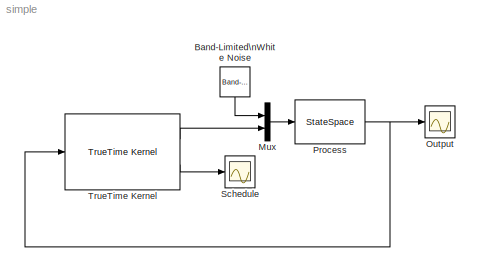
MODEL simple
KIND model
CONFIG AbsTol = auto
CONFIG FixedStep = auto
CONFIG MaxStep = auto
CONFIG MinStep = auto
CONFIG RelTol = 1e-3
CONFIG Solver = ode45
CONFIG SolverMode = Auto
CONFIG StartTime = 0.0
CONFIG StopTime = 10.0
BLOCK [Reference] Band-Limited\nWhite Noise  REF=simulink3/Sources/Band-Limited\nWhite Noise
  Cov = [0.1]
  Ports = [0, 1]
  SourceBlock = simulink3/Sources/Band-Limited\nWhite Noise
  SourceType = Continuous White Noise.
  Ts = 0.1
  VectorParams1D = on
  seed = [23341]
BLOCK [Mux] Mux
  DisplayOption = bar
  Inputs = 2
  Ports = [2, 1]
BLOCK [Scope] Output
  DataFormat = StructureWithTime
  Decimation = 1
  Floating = off
  Grid = on
  LimitDataPoints = on
  MaxDataPoints = 5000
  NumInputPorts = 1
  Ports = [1]
  SampleInput = off
  SampleTime = 0
  SaveName = ScopeData1
  SaveToWorkspace = off
  TickLabels = OneTimeTick
  TimeRange = auto
  YMax = 5
  YMin = -5
  ZoomMode = on
BLOCK [StateSpace] Process
  A = 1
  AbsoluteTolerance = auto
  B = 1
  C = 1
  D = 1
  Realization = auto
  X0 = 0
BLOCK [Scope] Schedule
  DataFormat = StructureWithTime
  Decimation = 1
  Floating = off
  Grid = on
  LimitDataPoints = on
  MaxDataPoints = 5000
  NumInputPorts = 1
  Ports = [1]
  SampleInput = off
  SampleTime = 0
  SaveName = ScopeData
  SaveToWorkspace = off
  TickLabels = OneTimeTick
  TimeRange = auto
  YMax = 5
  YMin = -5
  ZoomMode = on
BLOCK [Reference] TrueTime Kernel  REF=truetime/TrueTime Kernel  (lib defined in slx_0362a698a4ec)
  Ports = [1, 2]
  SourceBlock = truetime/TrueTime Kernel
  args = []
  battery = off
  clockoffsetdrift = [0 0]
  monitorsoutput = off
  ninputsoutputs = [1 1]
  ntriggers = 0
  nwnodenbr = []
  poweroutput = off
  schedoutput = on
  sfun = node_init
LINE Band-Limited\nWhite Noise:1 -> Mux:1
LINE Mux:1 -> Process:1
NET Process:1 -> Output:1, TrueTime Kernel:1
LINE TrueTime Kernel:1 -> Mux:2
LINE TrueTime Kernel:2 -> Schedule:1
note: NET lines group one-source signal fan-out (src -> all destinations, sorted); 1:1 wires keep LINE
